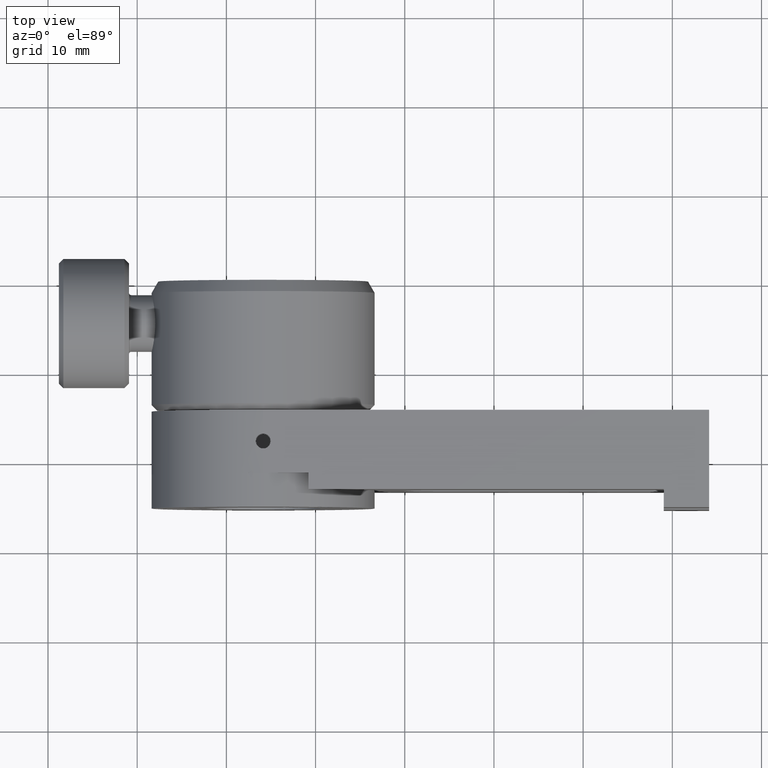
[diagram: clean part render]
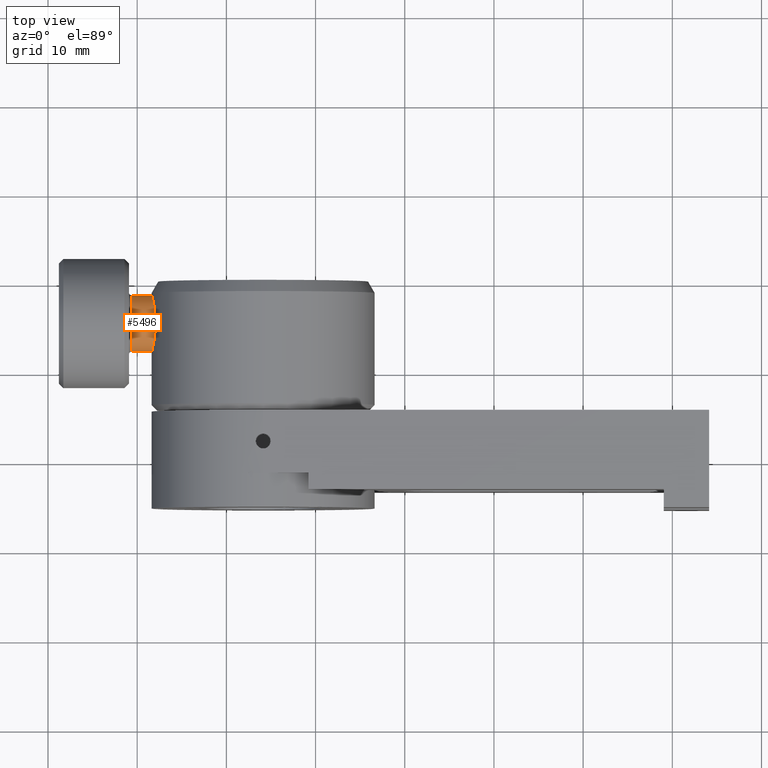
[diagram: same view with one face highlighted and labeled with its STEP entity id]
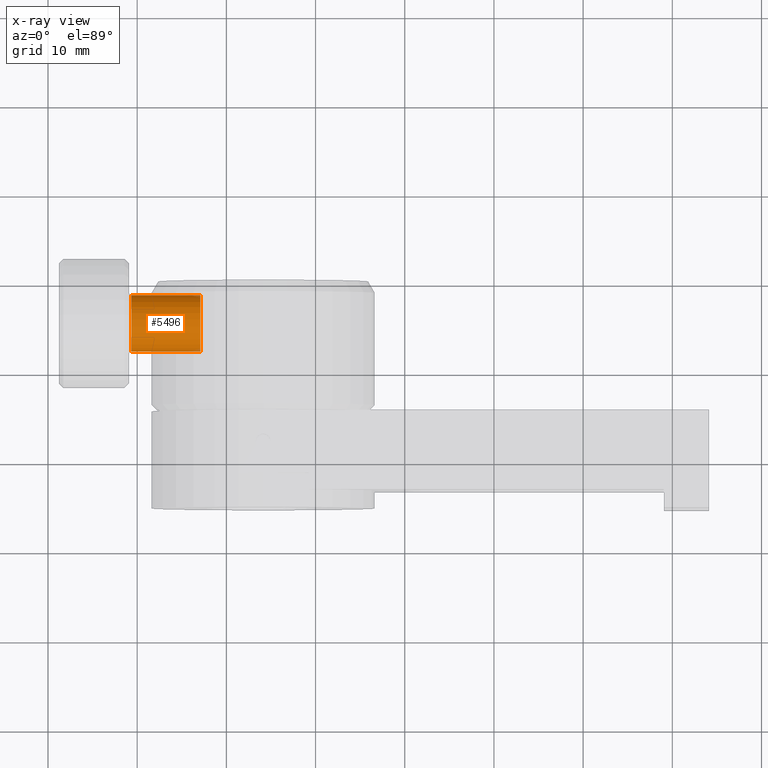
[diagram: x-ray of the same camera — body ghosted, the highlighted face saturated]
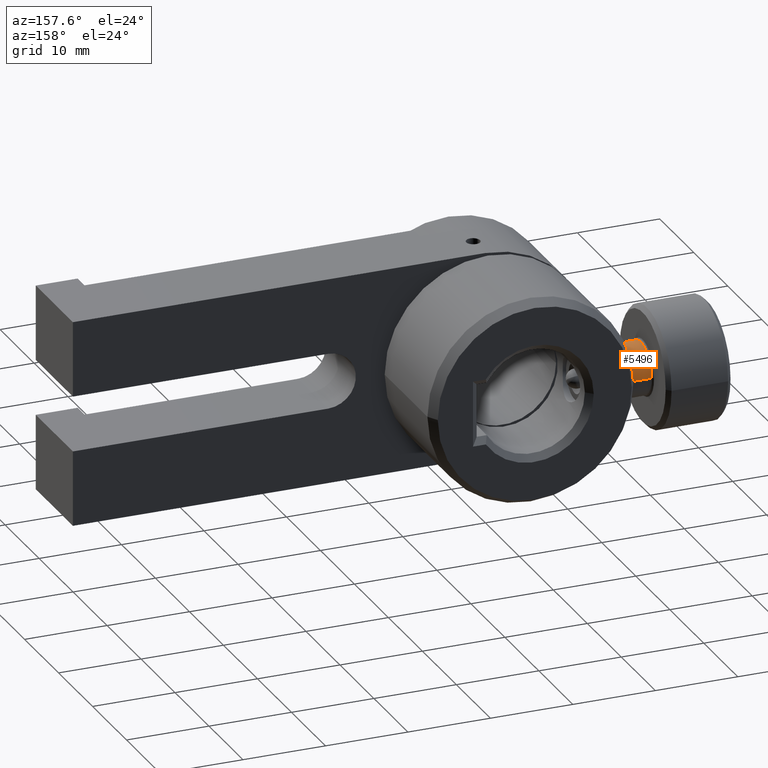
[diagram: same view with one face highlighted and labeled with its STEP entity id]
A machine part, top view. The second image highlights one B-rep face of the part: STEP entity #5496.
The next image is the same camera in x-ray: the body ghosted, the highlighted face saturated — about 1% of this face is hidden behind the body in this view.
A second angle (auxiliary view) of the same face is appended — the face is thin or edge-on in the first view.
In plain terms, the highlighted cylindrical surface (edge-blend (fillet) strip) has radius 3.175 mm, axis along (-1, 0, -0).
Its self-contained STEP definition (entity closure, byte-faithful):
#397 = CARTESIAN_POINT ( 'NONE',  ( -18.78773335610861700, 15.57873478776488900, -4.717271883712007800E-015 ) ) ;
#482 = VECTOR ( 'NONE', #2409, 1000.000000000000000 ) ;
#751 = DIRECTION ( 'NONE',  ( -1.000000000000000000, 4.314083075427407400E-031, -3.747002708109902300E-016 ) ) ;
#813 = CARTESIAN_POINT ( 'NONE',  ( -2.912733356108612200, 12.40373478776489000, 1.539762445019567300E-015 ) ) ;
#1231 = DIRECTION ( 'NONE',  ( 0.0000000000000000000, -1.000000000000000000, 9.721811956129268100E-017 ) ) ;
#1562 = AXIS2_PLACEMENT_3D ( 'NONE', #397, #4349, #4977 ) ;
#1659 = EDGE_CURVE ( 'NONE', #5996, #4347, #6392, .T. ) ;
#1857 = DIRECTION ( 'NONE',  ( 0.0000000000000000000, -1.000000000000000000, 9.721811956129262000E-017 ) ) ;
#2228 = ORIENTED_EDGE ( 'NONE', *, *, #6275, .T. ) ;
#2261 = DIRECTION ( 'NONE',  ( -1.000000000000000000, 4.314083075427407400E-031, -3.747002708109902300E-016 ) ) ;
#2409 = DIRECTION ( 'NONE',  ( -1.000000000000000000, 4.314083075427407400E-031, -3.747002708109902300E-016 ) ) ;
#2483 = LINE ( 'NONE', #3068, #482 ) ;
#2486 = CYLINDRICAL_SURFACE ( 'NONE', #1562, 3.174999999999998900 ) ;
#2930 = CARTESIAN_POINT ( 'NONE',  ( -10.65973335610861400, 15.57873478776488900, -1.671708082560279300E-015 ) ) ;
#3059 = DIRECTION ( 'NONE',  ( -1.000000000000000000, 4.314083075427407400E-031, -3.747002708109902300E-016 ) ) ;
#3068 = CARTESIAN_POINT ( 'NONE',  ( -18.78773335610861700, 18.75373478776488400, -4.637114054589828000E-015 ) ) ;
#3173 = AXIS2_PLACEMENT_3D ( 'NONE', #6430, #751, #1857 ) ;
#3461 = CARTESIAN_POINT ( 'NONE',  ( -18.78773335610861700, 12.40373478776489000, -4.408604354104903900E-015 ) ) ;
#3612 = CARTESIAN_POINT ( 'NONE',  ( -10.65973335610861400, 18.75373478776488400, -1.401487544517250800E-016 ) ) ;
#3902 = LINE ( 'NONE', #3461, #5227 ) ;
#4347 = VERTEX_POINT ( 'NONE', #3612 ) ;
#4349 = DIRECTION ( 'NONE',  ( -1.000000000000000000, 4.314083075427407400E-031, -3.747002708109902300E-016 ) ) ;
#4450 = AXIS2_PLACEMENT_3D ( 'NONE', #2930, #2261, #1231 ) ;
#4561 = ORIENTED_EDGE ( 'NONE', *, *, #1659, .F. ) ;
#4977 = DIRECTION ( 'NONE',  ( 0.0000000000000000000, -1.000000000000000000, 9.721811956129262000E-017 ) ) ;
#5116 = CARTESIAN_POINT ( 'NONE',  ( -2.912733356108612200, 18.75373478776488400, -1.401487544517254500E-016 ) ) ;
#5227 = VECTOR ( 'NONE', #3059, 1000.000000000000000 ) ;
#5233 = EDGE_CURVE ( 'NONE', #5646, #4347, #2483, .T. ) ;
#5365 = VERTEX_POINT ( 'NONE', #813 ) ;
#5496 = ADVANCED_FACE ( 'NONE', ( #7228 ), #2486, .T. ) ;
#5507 = CARTESIAN_POINT ( 'NONE',  ( -10.65973335610861400, 12.40373478776489200, -1.363040552953175200E-015 ) ) ;
#5646 = VERTEX_POINT ( 'NONE', #5116 ) ;
#5674 = CIRCLE ( 'NONE', #3173, 3.174999999999998900 ) ;
#5996 = VERTEX_POINT ( 'NONE', #5507 ) ;
#6116 = EDGE_LOOP ( 'NONE', ( #2228, #6427, #4561, #6465 ) ) ;
#6275 = EDGE_CURVE ( 'NONE', #5365, #5646, #5674, .T. ) ;
#6392 = CIRCLE ( 'NONE', #4450, 3.174999999999997200 ) ;
#6427 = ORIENTED_EDGE ( 'NONE', *, *, #5233, .T. ) ;
#6430 = CARTESIAN_POINT ( 'NONE',  ( -2.912733356108612200, 15.57873478776488900, 1.231094915412463200E-015 ) ) ;
#6465 = ORIENTED_EDGE ( 'NONE', *, *, #6696, .F. ) ;
#6696 = EDGE_CURVE ( 'NONE', #5365, #5996, #3902, .T. ) ;
#7228 = FACE_OUTER_BOUND ( 'NONE', #6116, .T. ) ;